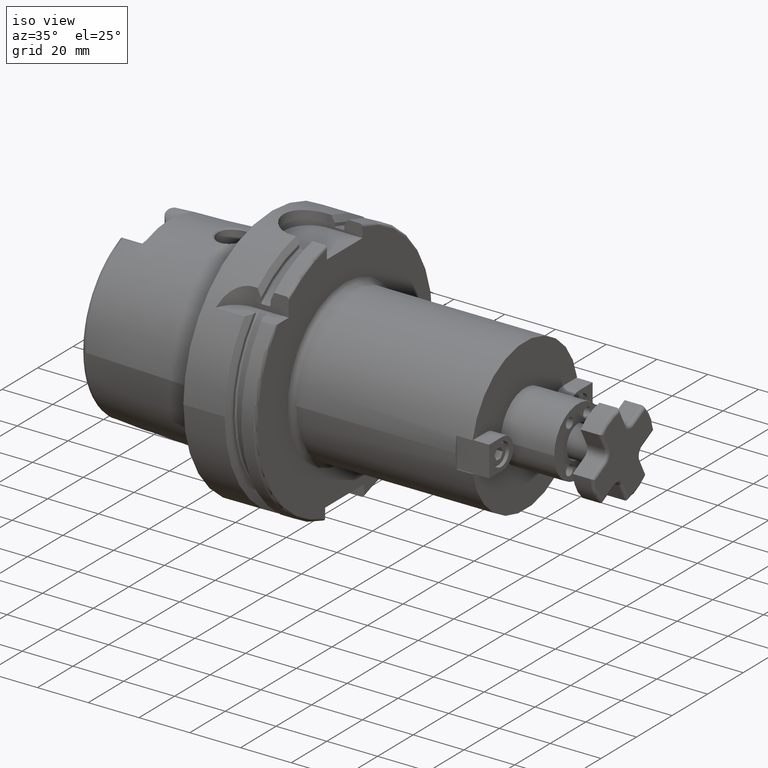
[diagram: clean part render]
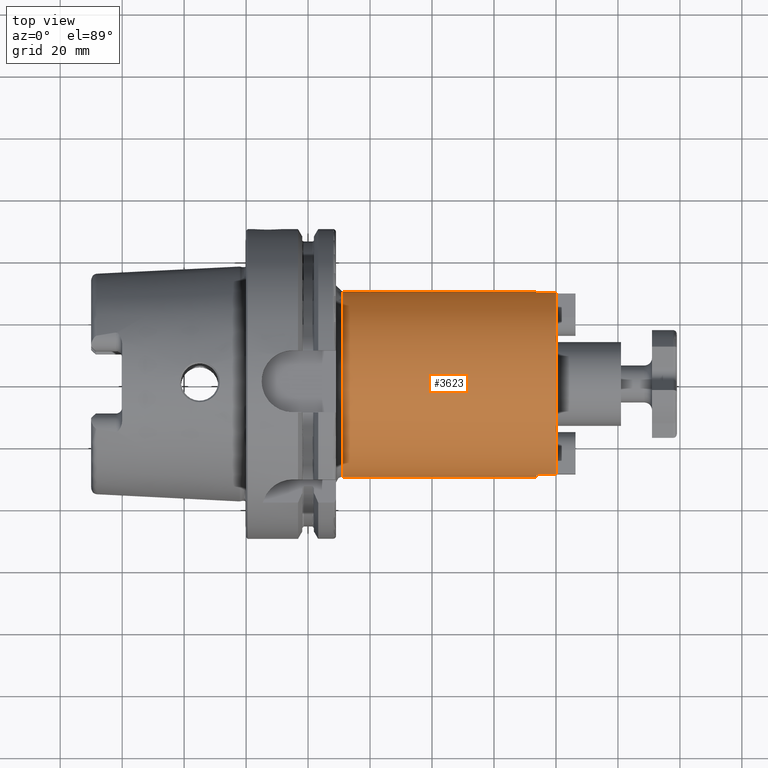
[diagram: tour spotlight — one face highlighted and labeled with its STEP entity id]
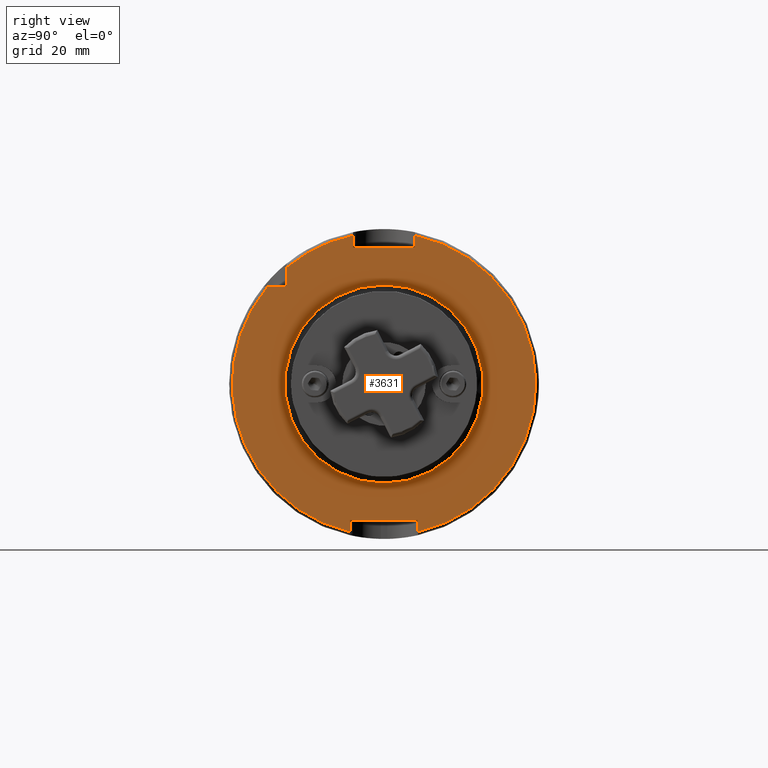
[diagram: tour spotlight — one face highlighted and labeled with its STEP entity id]
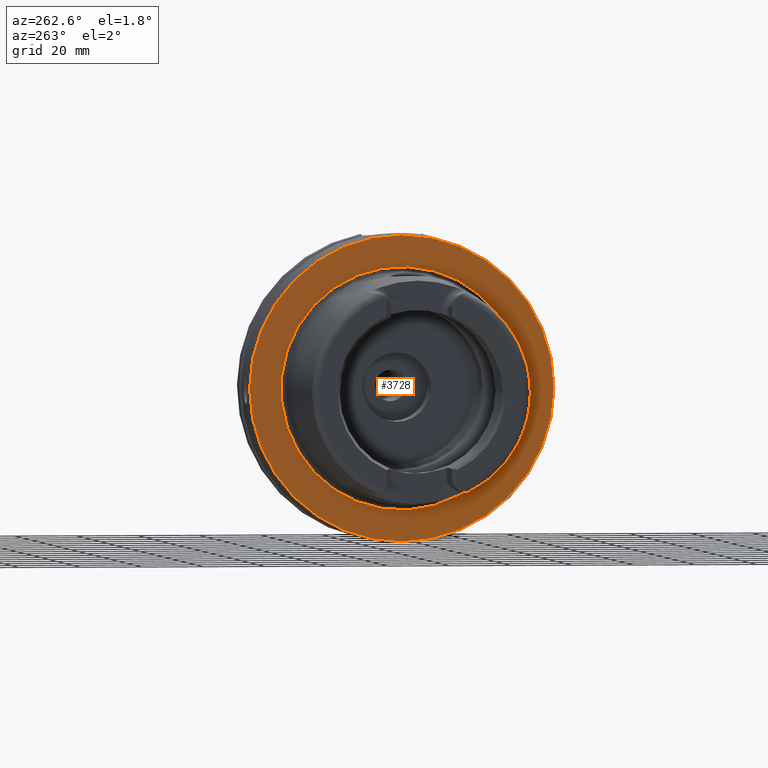
[diagram: tour spotlight — one face highlighted and labeled with its STEP entity id]
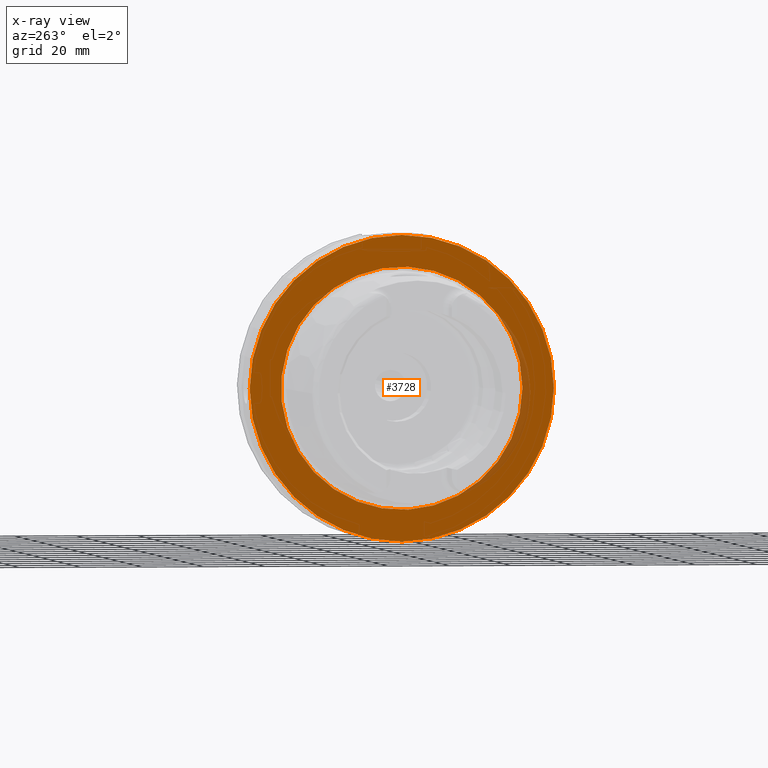
[diagram: x-ray of the same camera — body ghosted, this tour face saturated]
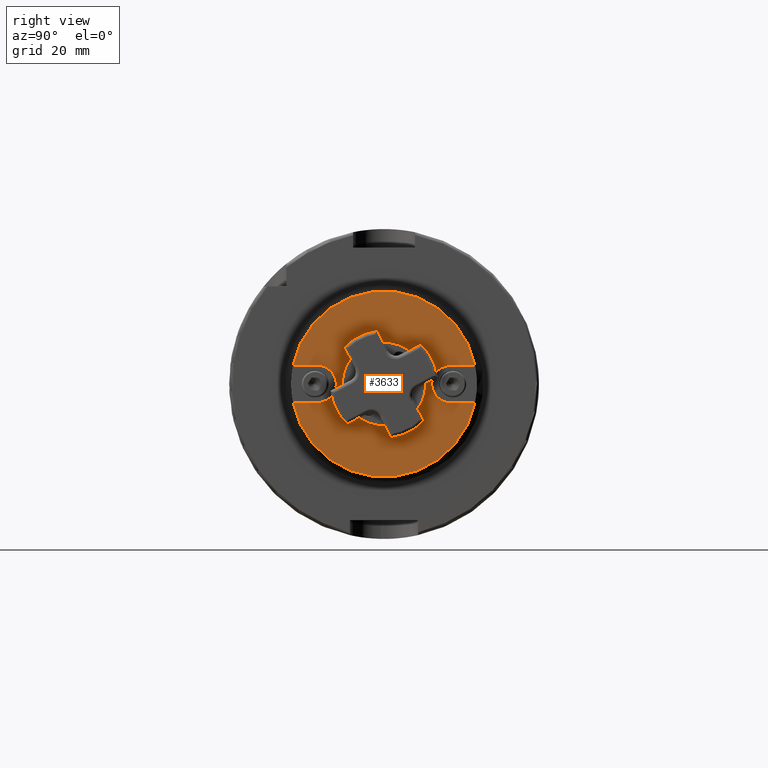
[diagram: tour spotlight — one face highlighted and labeled with its STEP entity id]
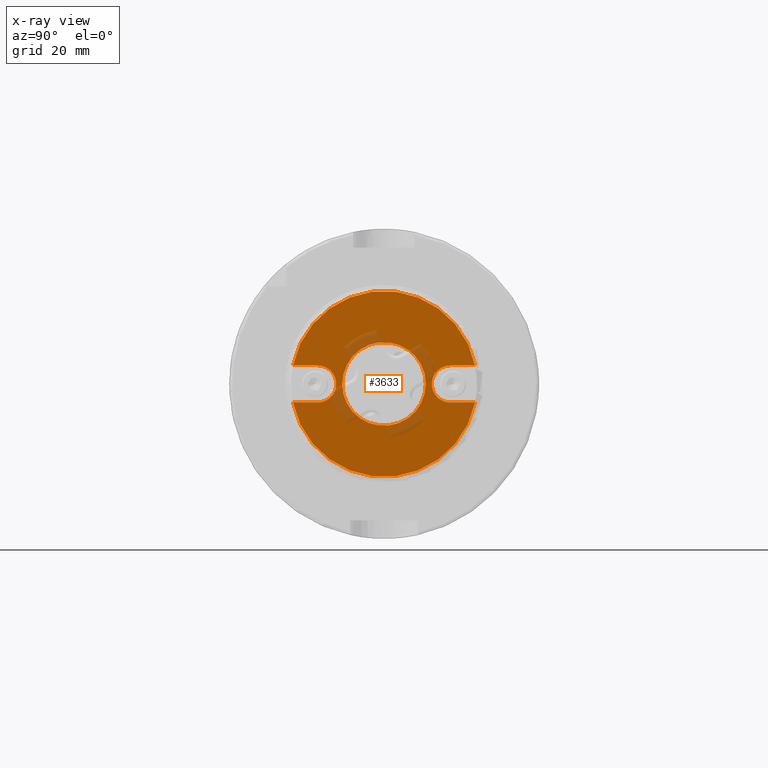
[diagram: x-ray of the same camera — body ghosted, this tour face saturated]
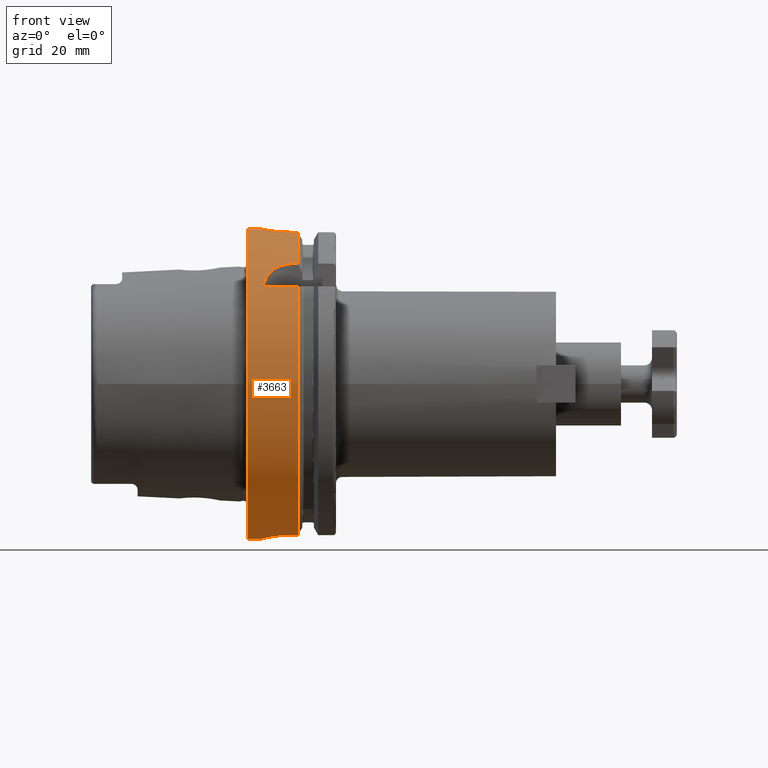
[diagram: tour spotlight — one face highlighted and labeled with its STEP entity id]
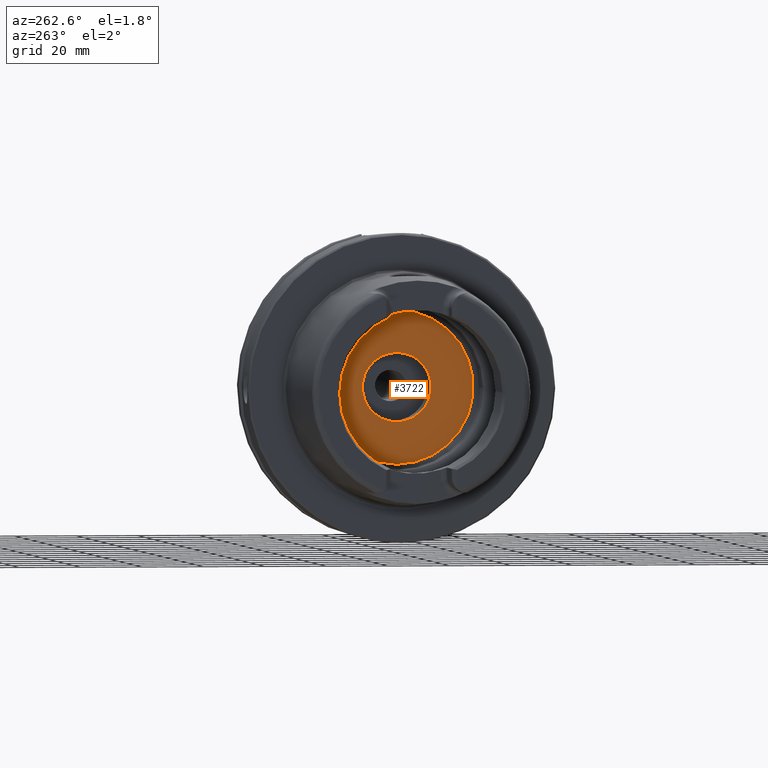
[diagram: tour spotlight — one face highlighted and labeled with its STEP entity id]
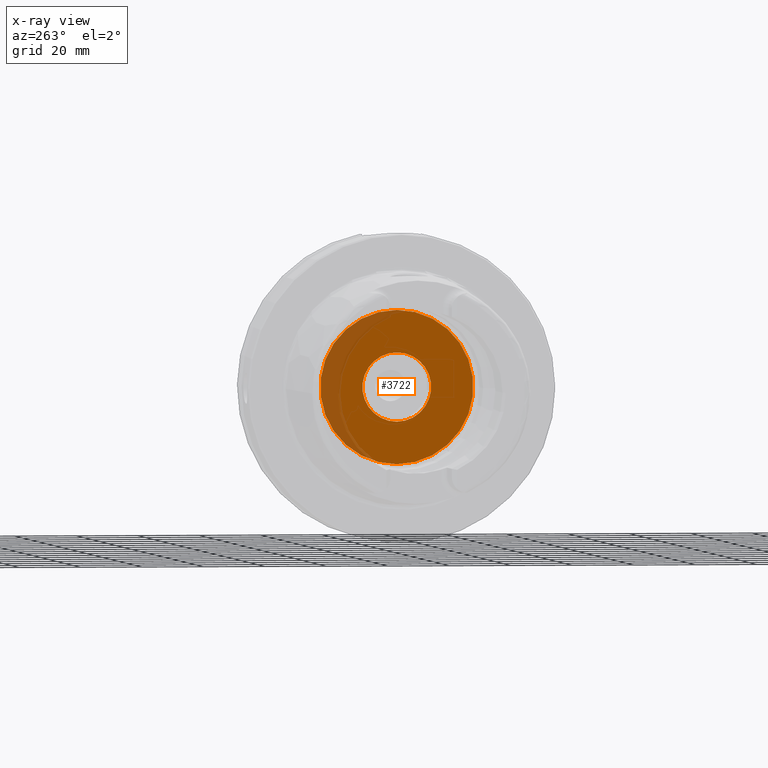
[diagram: x-ray of the same camera — body ghosted, this tour face saturated]
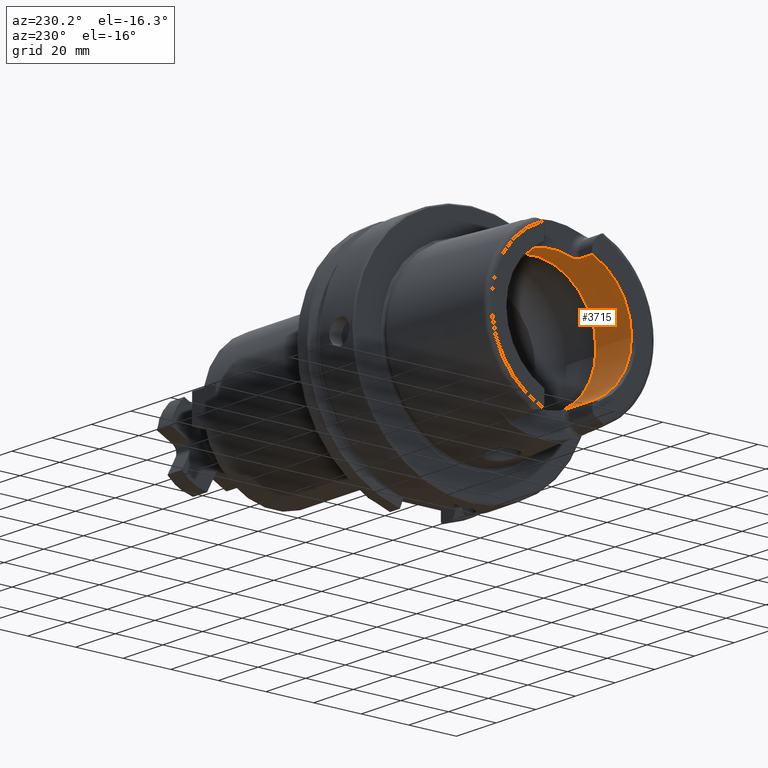
[diagram: tour spotlight — one face highlighted and labeled with its STEP entity id]
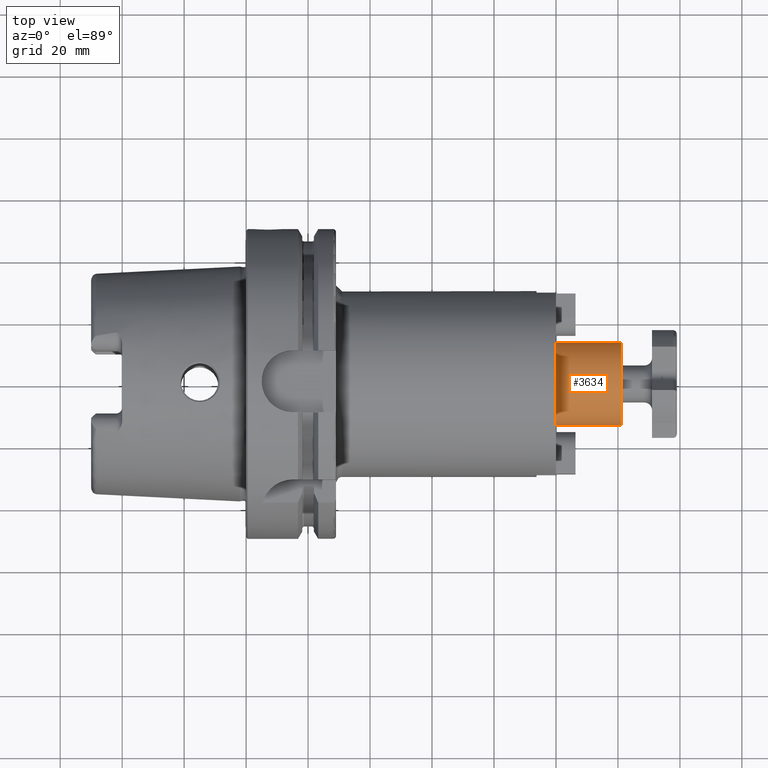
[diagram: tour spotlight — one face highlighted and labeled with its STEP entity id]
A machine part: a face-by-face anatomy tour. The part has 217 B-rep faces; the first image is the clean iso view, then the 8 largest visible faces are spotlighted one at a time (largest first), each with its STEP entity span.

Face 1 — top view, entity #3623. In plain terms, the highlighted cylindrical surface (bore or boss wall) has radius 30 mm, axis along (1, 0, 0).
Definition (entity closure, byte-faithful):
#720=CYLINDRICAL_SURFACE('',#3994,30.);
#792=FACE_OUTER_BOUND('',#986,.T.);
#986=EDGE_LOOP('',(#2666,#2667,#2668,#2669,#2670,#2671,#2672,#2673,#2674,
#2675,#2676,#2677,#2678));
#1195=LINE('',#5640,#1393);
#1203=LINE('',#5669,#1401);
#1205=LINE('',#5673,#1403);
#1206=LINE('',#5680,#1404);
#1207=LINE('',#5684,#1405);
#1393=VECTOR('',#4489,10.);
#1401=VECTOR('',#4519,10.);
#1403=VECTOR('',#4523,30.);
#1404=VECTOR('',#4530,10.);
#1405=VECTOR('',#4533,10.);
#1591=CIRCLE('',#3984,30.);
#1593=CIRCLE('',#3986,30.);
#1597=CIRCLE('',#3995,30.);
#1598=CIRCLE('',#3996,30.);
#1599=CIRCLE('',#3997,30.);
#1600=CIRCLE('',#3998,30.);
#1601=CIRCLE('',#3999,30.);
#1821=VERTEX_POINT('',#5638);
#1822=VERTEX_POINT('',#5639);
#1825=VERTEX_POINT('',#5647);
#1827=VERTEX_POINT('',#5651);
#1832=VERTEX_POINT('',#5668);
#1833=VERTEX_POINT('',#5672);
#1834=VERTEX_POINT('',#5674);
#1835=VERTEX_POINT('',#5677);
#1836=VERTEX_POINT('',#5679);
#1837=VERTEX_POINT('',#5681);
#1838=VERTEX_POINT('',#5683);
#2142=EDGE_CURVE('',#1821,#1822,#1195,.T.);
#2146=EDGE_CURVE('',#1822,#1825,#1591,.T.);
#2149=EDGE_CURVE('',#1825,#1827,#1593,.T.);
#2156=EDGE_CURVE('',#1827,#1832,#1203,.T.);
#2158=EDGE_CURVE('',#1825,#1833,#1205,.T.);
#2159=EDGE_CURVE('',#1834,#1833,#1597,.T.);
#2160=EDGE_CURVE('',#1833,#1834,#1598,.T.);
#2161=EDGE_CURVE('',#1835,#1832,#1599,.T.);
#2162=EDGE_CURVE('',#1835,#1836,#1206,.T.);
#2163=EDGE_CURVE('',#1836,#1837,#1600,.T.);
#2164=EDGE_CURVE('',#1837,#1838,#1207,.T.);
#2165=EDGE_CURVE('',#1821,#1838,#1601,.T.);
#2666=ORIENTED_EDGE('',*,*,#2142,.T.);
#2667=ORIENTED_EDGE('',*,*,#2146,.T.);
#2668=ORIENTED_EDGE('',*,*,#2158,.T.);
#2669=ORIENTED_EDGE('',*,*,#2159,.F.);
#2670=ORIENTED_EDGE('',*,*,#2160,.F.);
#2671=ORIENTED_EDGE('',*,*,#2158,.F.);
#2672=ORIENTED_EDGE('',*,*,#2149,.T.);
#2673=ORIENTED_EDGE('',*,*,#2156,.T.);
#2674=ORIENTED_EDGE('',*,*,#2161,.F.);
#2675=ORIENTED_EDGE('',*,*,#2162,.T.);
#2676=ORIENTED_EDGE('',*,*,#2163,.T.);
#2677=ORIENTED_EDGE('',*,*,#2164,.T.);
#2678=ORIENTED_EDGE('',*,*,#2165,.F.);
#3623=ADVANCED_FACE('',(#792),#720,.T.);
#3984=AXIS2_PLACEMENT_3D('',#5648,#4495,#4496);
#3986=AXIS2_PLACEMENT_3D('',#5653,#4500,#4501);
#3994=AXIS2_PLACEMENT_3D('',#5671,#4521,#4522);
#3995=AXIS2_PLACEMENT_3D('',#5675,#4524,#4525);
#3996=AXIS2_PLACEMENT_3D('',#5676,#4526,#4527);
#3997=AXIS2_PLACEMENT_3D('',#5678,#4528,#4529);
#3998=AXIS2_PLACEMENT_3D('',#5682,#4531,#4532);
#3999=AXIS2_PLACEMENT_3D('',#5685,#4534,#4535);
#4489=DIRECTION('',(-1.,0.,0.));
#4495=DIRECTION('center_axis',(-1.,0.,0.));
#4496=DIRECTION('ref_axis',(0.,1.,0.));
#4500=DIRECTION('center_axis',(-1.,0.,0.));
#4501=DIRECTION('ref_axis',(0.,1.,0.));
#4519=DIRECTION('',(1.,0.,0.));
#4521=DIRECTION('center_axis',(1.,0.,0.));
#4522=DIRECTION('ref_axis',(0.,1.,0.));
#4523=DIRECTION('',(-1.,0.,0.));
#4524=DIRECTION('center_axis',(-1.,0.,0.));
#4525=DIRECTION('ref_axis',(0.,-1.,-1.22464679914735E-16));
#4526=DIRECTION('center_axis',(-1.,0.,0.));
#4527=DIRECTION('ref_axis',(0.,-1.,-1.22464679914735E-16));
#4528=DIRECTION('center_axis',(1.,0.,0.));
#4529=DIRECTION('ref_axis',(0.,0.,-1.));
#4530=DIRECTION('',(-1.,0.,0.));
#4531=DIRECTION('center_axis',(-1.,0.,0.));
#4532=DIRECTION('ref_axis',(0.,1.,0.));
#4533=DIRECTION('',(1.,0.,0.));
#4534=DIRECTION('center_axis',(1.,0.,0.));
#4535=DIRECTION('ref_axis',(0.,0.,-1.));
#5638=CARTESIAN_POINT('',(100.,-29.3938769133981,-6.));
#5639=CARTESIAN_POINT('',(93.7,-29.3938769133981,-6.));
#5640=CARTESIAN_POINT('',(64.5,-29.3938769133981,-6.));
#5647=CARTESIAN_POINT('',(93.7,-30.,-3.67394039744206E-15));
#5648=CARTESIAN_POINT('Origin',(93.7,0.,0.));
#5651=CARTESIAN_POINT('',(93.7,-29.3938769133981,6.));
#5653=CARTESIAN_POINT('Origin',(93.7,0.,0.));
#5668=CARTESIAN_POINT('',(100.,-29.3938769133981,6.));
#5669=CARTESIAN_POINT('',(64.5,-29.3938769133981,6.));
#5671=CARTESIAN_POINT('Origin',(64.5,0.,0.));
#5672=CARTESIAN_POINT('',(31.,-30.,-3.67394039744206E-15));
#5673=CARTESIAN_POINT('',(64.5,-30.,-3.67394039744206E-15));
#5674=CARTESIAN_POINT('',(31.,-3.67394039744206E-15,-30.));
#5675=CARTESIAN_POINT('Origin',(31.,0.,0.));
#5676=CARTESIAN_POINT('Origin',(31.,0.,0.));
#5677=CARTESIAN_POINT('',(100.,29.3938769133981,6.00000000000001));
#5678=CARTESIAN_POINT('Origin',(100.,0.,0.));
#5679=CARTESIAN_POINT('',(93.7,29.3938769133981,6.00000000000001));
#5680=CARTESIAN_POINT('',(64.5,29.3938769133981,6.00000000000001));
#5681=CARTESIAN_POINT('',(93.7,29.3938769133981,-6.));
#5682=CARTESIAN_POINT('Origin',(93.7,0.,0.));
#5683=CARTESIAN_POINT('',(100.,29.3938769133981,-6.));
#5684=CARTESIAN_POINT('',(64.5,29.3938769133981,-6.));
#5685=CARTESIAN_POINT('Origin',(100.,0.,0.));

Face 2 — right view, entity #3631. In plain terms, the highlighted planar face has unit normal (1, 0, 0).
Definition (entity closure, byte-faithful):
#623=FACE_BOUND('',#996,.T.);
#650=PLANE('',#4013);
#800=FACE_OUTER_BOUND('',#995,.T.);
#995=EDGE_LOOP('',(#2708,#2709,#2710,#2711,#2712,#2713,#2714,#2715,#2716,
#2717,#2718));
#996=EDGE_LOOP('',(#2719));
#1216=LINE('',#5718,#1414);
#1217=LINE('',#5722,#1415);
#1218=LINE('',#5724,#1416);
#1219=LINE('',#5726,#1417);
#1220=LINE('',#5730,#1418);
#1221=LINE('',#5732,#1419);
#1222=LINE('',#5734,#1420);
#1223=LINE('',#5737,#1421);
#1414=VECTOR('',#4572,10.);
#1415=VECTOR('',#4575,10.);
#1416=VECTOR('',#4576,10.);
#1417=VECTOR('',#4577,10.);
#1418=VECTOR('',#4580,10.);
#1419=VECTOR('',#4581,10.);
#1420=VECTOR('',#4582,10.);
#1421=VECTOR('',#4585,10.);
#1607=CIRCLE('',#4012,32.);
#1608=CIRCLE('',#4014,49.);
#1609=CIRCLE('',#4015,49.);
#1610=CIRCLE('',#4016,49.);
#1846=VERTEX_POINT('',#5712);
#1847=VERTEX_POINT('',#5716);
#1848=VERTEX_POINT('',#5717);
#1849=VERTEX_POINT('',#5719);
#1850=VERTEX_POINT('',#5721);
#1851=VERTEX_POINT('',#5723);
#1852=VERTEX_POINT('',#5725);
#1853=VERTEX_POINT('',#5727);
#1854=VERTEX_POINT('',#5729);
#1855=VERTEX_POINT('',#5731);
#1856=VERTEX_POINT('',#5733);
#1857=VERTEX_POINT('',#5735);
#2179=EDGE_CURVE('',#1846,#1846,#1607,.T.);
#2180=EDGE_CURVE('',#1847,#1848,#1216,.T.);
#2181=EDGE_CURVE('',#1848,#1849,#1608,.T.);
#2182=EDGE_CURVE('',#1849,#1850,#1217,.T.);
#2183=EDGE_CURVE('',#1850,#1851,#1218,.T.);
#2184=EDGE_CURVE('',#1851,#1852,#1219,.T.);
#2185=EDGE_CURVE('',#1852,#1853,#1609,.T.);
#2186=EDGE_CURVE('',#1853,#1854,#1220,.T.);
#2187=EDGE_CURVE('',#1854,#1855,#1221,.T.);
#2188=EDGE_CURVE('',#1855,#1856,#1222,.T.);
#2189=EDGE_CURVE('',#1856,#1857,#1610,.T.);
#2190=EDGE_CURVE('',#1857,#1847,#1223,.T.);
#2708=ORIENTED_EDGE('',*,*,#2180,.T.);
#2709=ORIENTED_EDGE('',*,*,#2181,.T.);
#2710=ORIENTED_EDGE('',*,*,#2182,.T.);
#2711=ORIENTED_EDGE('',*,*,#2183,.T.);
#2712=ORIENTED_EDGE('',*,*,#2184,.T.);
#2713=ORIENTED_EDGE('',*,*,#2185,.T.);
#2714=ORIENTED_EDGE('',*,*,#2186,.T.);
#2715=ORIENTED_EDGE('',*,*,#2187,.T.);
#2716=ORIENTED_EDGE('',*,*,#2188,.T.);
#2717=ORIENTED_EDGE('',*,*,#2189,.T.);
#2718=ORIENTED_EDGE('',*,*,#2190,.T.);
#2719=ORIENTED_EDGE('',*,*,#2179,.F.);
#3631=ADVANCED_FACE('',(#800,#623),#650,.T.);
#4012=AXIS2_PLACEMENT_3D('',#5714,#4568,#4569);
#4013=AXIS2_PLACEMENT_3D('',#5715,#4570,#4571);
#4014=AXIS2_PLACEMENT_3D('',#5720,#4573,#4574);
#4015=AXIS2_PLACEMENT_3D('',#5728,#4578,#4579);
#4016=AXIS2_PLACEMENT_3D('',#5736,#4583,#4584);
#4568=DIRECTION('center_axis',(1.,0.,0.));
#4569=DIRECTION('ref_axis',(0.,-1.,-1.22464679914735E-16));
#4570=DIRECTION('center_axis',(1.,0.,0.));
#4571=DIRECTION('ref_axis',(0.,0.,-1.));
#4572=DIRECTION('',(0.,-1.,0.));
#4573=DIRECTION('center_axis',(1.,0.,0.));
#4574=DIRECTION('ref_axis',(0.,0.,-1.));
#4575=DIRECTION('',(0.,0.,1.));
#4576=DIRECTION('',(0.,1.,0.));
#4577=DIRECTION('',(0.,0.,-1.));
#4578=DIRECTION('center_axis',(1.,0.,0.));
#4579=DIRECTION('ref_axis',(0.,0.,-1.));
#4580=DIRECTION('',(0.,0.,-1.));
#4581=DIRECTION('',(0.,-1.,0.));
#4582=DIRECTION('',(0.,0.,1.));
#4583=DIRECTION('center_axis',(1.,0.,0.));
#4584=DIRECTION('ref_axis',(0.,0.,-1.));
#4585=DIRECTION('',(0.,0.,-1.));
#5712=CARTESIAN_POINT('',(29.,-3.91886975727153E-15,-32.));
#5714=CARTESIAN_POINT('Origin',(29.,0.,0.));
#5715=CARTESIAN_POINT('Origin',(29.,0.,0.));
#5716=CARTESIAN_POINT('',(29.,-31.5,31.5));
#5717=CARTESIAN_POINT('',(29.,-37.5333185316726,31.5));
#5718=CARTESIAN_POINT('',(29.,-18.25,31.5));
#5719=CARTESIAN_POINT('',(29.,-11.,-47.7493455452533));
#5720=CARTESIAN_POINT('Origin',(29.,0.,0.));
#5721=CARTESIAN_POINT('',(29.,-11.,-44.));
#5722=CARTESIAN_POINT('',(29.,-11.,-22.));
#5723=CARTESIAN_POINT('',(29.,11.,-44.));
#5724=CARTESIAN_POINT('',(29.,-5.55111512312578E-16,-44.));
#5725=CARTESIAN_POINT('',(29.,11.,-47.7493455452533));
#5726=CARTESIAN_POINT('',(29.,11.,-22.));
#5727=CARTESIAN_POINT('',(29.,10.,47.9687398208458));
#5728=CARTESIAN_POINT('Origin',(29.,0.,0.));
#5729=CARTESIAN_POINT('',(29.,10.,44.));
#5730=CARTESIAN_POINT('',(29.,10.,22.));
#5731=CARTESIAN_POINT('',(29.,-10.,44.));
#5732=CARTESIAN_POINT('',(29.,0.,44.));
#5733=CARTESIAN_POINT('',(29.,-10.,47.9687398208458));
#5734=CARTESIAN_POINT('',(29.,-10.,22.));
#5735=CARTESIAN_POINT('',(29.,-31.5,37.5333185316726));
#5736=CARTESIAN_POINT('Origin',(29.,0.,0.));
#5737=CARTESIAN_POINT('',(29.,-31.5,15.75));

Face 3 — auxiliary view, entity #3728. An x-ray twin of the same camera follows (body ghosted, this face saturated) — the face is partly hidden behind the body. In plain terms, the highlighted planar face has unit normal (-1, 0, 0).
Definition (entity closure, byte-faithful):
#637=FACE_BOUND('',#1107,.T.);
#685=PLANE('',#4221);
#897=FACE_OUTER_BOUND('',#1106,.T.);
#1106=EDGE_LOOP('',(#3253));
#1107=EDGE_LOOP('',(#3254));
#1712=CIRCLE('',#4220,39.2747800249997);
#1713=CIRCLE('',#4222,49.5);
#2031=VERTEX_POINT('',#7149);
#2032=VERTEX_POINT('',#7153);
#2456=EDGE_CURVE('',#2031,#2031,#1712,.T.);
#2457=EDGE_CURVE('',#2032,#2032,#1713,.T.);
#3253=ORIENTED_EDGE('',*,*,#2457,.F.);
#3254=ORIENTED_EDGE('',*,*,#2456,.T.);
#3728=ADVANCED_FACE('',(#897,#637),#685,.T.);
#4220=AXIS2_PLACEMENT_3D('',#7151,#5080,#5081);
#4221=AXIS2_PLACEMENT_3D('',#7152,#5082,#5083);
#4222=AXIS2_PLACEMENT_3D('',#7154,#5084,#5085);
#5080=DIRECTION('center_axis',(1.,0.,0.));
#5081=DIRECTION('ref_axis',(0.,0.,-1.));
#5082=DIRECTION('center_axis',(-1.,0.,0.));
#5083=DIRECTION('ref_axis',(0.,0.,1.));
#5084=DIRECTION('center_axis',(1.,0.,0.));
#5085=DIRECTION('ref_axis',(0.,0.,-1.));
#7149=CARTESIAN_POINT('',(-1.04950770296597E-15,-39.2747800249997,-4.80977336448322E-15));
#7151=CARTESIAN_POINT('Origin',(0.,0.,0.));
#7152=CARTESIAN_POINT('Origin',(0.,49.5,0.));
#7153=CARTESIAN_POINT('',(1.28369537222284E-15,-49.5,-6.0620016557794E-15));
#7154=CARTESIAN_POINT('Origin',(0.,0.,0.));

Face 4 — right view, entity #3633. An x-ray twin of the same camera follows (body ghosted, this face saturated) — the face is partly hidden behind the body. In plain terms, the highlighted planar face has unit normal (1, 0, 0).
Definition (entity closure, byte-faithful):
#624=FACE_BOUND('',#999,.T.);
#651=PLANE('',#4020);
#802=FACE_OUTER_BOUND('',#998,.T.);
#998=EDGE_LOOP('',(#2724,#2725,#2726,#2727,#2728,#2729,#2730,#2731));
#999=EDGE_LOOP('',(#2732));
#1196=LINE('',#5642,#1394);
#1204=LINE('',#5670,#1402);
#1210=LINE('',#5697,#1408);
#1215=LINE('',#5710,#1413);
#1394=VECTOR('',#4490,10.);
#1402=VECTOR('',#4520,10.);
#1408=VECTOR('',#4548,10.);
#1413=VECTOR('',#4563,10.);
#1596=CIRCLE('',#3992,5.99999999999999);
#1599=CIRCLE('',#3997,30.);
#1601=CIRCLE('',#3999,30.);
#1605=CIRCLE('',#4008,5.99999999999999);
#1613=CIRCLE('',#4021,13.5);
#1821=VERTEX_POINT('',#5638);
#1823=VERTEX_POINT('',#5641);
#1831=VERTEX_POINT('',#5664);
#1832=VERTEX_POINT('',#5668);
#1835=VERTEX_POINT('',#5677);
#1838=VERTEX_POINT('',#5683);
#1842=VERTEX_POINT('',#5696);
#1845=VERTEX_POINT('',#5706);
#1860=VERTEX_POINT('',#5745);
#2143=EDGE_CURVE('',#1823,#1821,#1196,.T.);
#2154=EDGE_CURVE('',#1831,#1823,#1596,.T.);
#2157=EDGE_CURVE('',#1832,#1831,#1204,.T.);
#2161=EDGE_CURVE('',#1835,#1832,#1599,.T.);
#2165=EDGE_CURVE('',#1821,#1838,#1601,.T.);
#2170=EDGE_CURVE('',#1842,#1835,#1210,.T.);
#2175=EDGE_CURVE('',#1845,#1842,#1605,.T.);
#2177=EDGE_CURVE('',#1838,#1845,#1215,.T.);
#2194=EDGE_CURVE('',#1860,#1860,#1613,.T.);
#2724=ORIENTED_EDGE('',*,*,#2143,.T.);
#2725=ORIENTED_EDGE('',*,*,#2165,.T.);
#2726=ORIENTED_EDGE('',*,*,#2177,.T.);
#2727=ORIENTED_EDGE('',*,*,#2175,.T.);
#2728=ORIENTED_EDGE('',*,*,#2170,.T.);
#2729=ORIENTED_EDGE('',*,*,#2161,.T.);
#2730=ORIENTED_EDGE('',*,*,#2157,.T.);
#2731=ORIENTED_EDGE('',*,*,#2154,.T.);
#2732=ORIENTED_EDGE('',*,*,#2194,.F.);
#3633=ADVANCED_FACE('',(#802,#624),#651,.T.);
#3992=AXIS2_PLACEMENT_3D('',#5665,#4514,#4515);
#3997=AXIS2_PLACEMENT_3D('',#5678,#4528,#4529);
#3999=AXIS2_PLACEMENT_3D('',#5685,#4534,#4535);
#4008=AXIS2_PLACEMENT_3D('',#5707,#4558,#4559);
#4020=AXIS2_PLACEMENT_3D('',#5744,#4593,#4594);
#4021=AXIS2_PLACEMENT_3D('',#5746,#4595,#4596);
#4490=DIRECTION('',(0.,-1.,-2.85705549726866E-16));
#4514=DIRECTION('center_axis',(-1.,0.,0.));
#4515=DIRECTION('ref_axis',(0.,6.17684003168704E-16,-1.));
#4520=DIRECTION('',(0.,1.,-4.08306339864151E-17));
#4528=DIRECTION('center_axis',(1.,0.,0.));
#4529=DIRECTION('ref_axis',(0.,0.,-1.));
#4534=DIRECTION('center_axis',(1.,0.,0.));
#4535=DIRECTION('ref_axis',(0.,0.,-1.));
#4548=DIRECTION('',(0.,1.,4.08170229641601E-16));
#4558=DIRECTION('center_axis',(-1.,0.,0.));
#4559=DIRECTION('ref_axis',(0.,-7.40148683083439E-16,1.));
#4563=DIRECTION('',(0.,-1.,-8.16340459283202E-17));
#4593=DIRECTION('center_axis',(1.,0.,0.));
#4594=DIRECTION('ref_axis',(0.,0.,-1.));
#4595=DIRECTION('center_axis',(1.,0.,0.));
#4596=DIRECTION('ref_axis',(0.,0.,-1.));
#5638=CARTESIAN_POINT('',(100.,-29.3938769133981,-6.));
#5641=CARTESIAN_POINT('',(100.,-21.4,-6.));
#5642=CARTESIAN_POINT('',(100.,-3.94999999999999,-5.99999999999999));
#5664=CARTESIAN_POINT('',(100.,-21.4,6.));
#5665=CARTESIAN_POINT('Origin',(100.,-21.4,-1.0992752473939E-14));
#5668=CARTESIAN_POINT('',(100.,-29.3938769133981,6.));
#5670=CARTESIAN_POINT('',(100.,-10.75,6.));
#5677=CARTESIAN_POINT('',(100.,29.3938769133981,6.00000000000001));
#5678=CARTESIAN_POINT('Origin',(100.,0.,0.));
#5683=CARTESIAN_POINT('',(100.,29.3938769133981,-6.));
#5685=CARTESIAN_POINT('Origin',(100.,0.,0.));
#5696=CARTESIAN_POINT('',(100.,21.4,6.));
#5697=CARTESIAN_POINT('',(100.,17.45,6.));
#5706=CARTESIAN_POINT('',(100.,21.4,-6.));
#5707=CARTESIAN_POINT('Origin',(100.,21.4,1.36134966241143E-14));
#5710=CARTESIAN_POINT('',(100.,24.25,-6.));
#5744=CARTESIAN_POINT('Origin',(100.,13.5,0.));
#5745=CARTESIAN_POINT('',(100.,-13.5,-1.65327317884893E-15));
#5746=CARTESIAN_POINT('Origin',(100.,0.,0.));

Face 5 — front view, entity #3663. In plain terms, the highlighted cylindrical surface (bore or boss wall) has radius 50 mm, axis along (1, 0, 0).
Definition (entity closure, byte-faithful):
#541=B_SPLINE_CURVE_WITH_KNOTS('',3,(#6505,#6506,#6507,#6508,#6509,#6510,
#6511,#6512,#6513,#6514,#6515,#6516,#6517,#6518,#6519,#6520,#6521,#6522,
#6523,#6524,#6525,#6526,#6527,#6528,#6529,#6530),.UNSPECIFIED.,.F.,.F.,
(4,2,2,2,2,2,2,2,2,2,2,2,4),(0.,0.188478911015149,0.376957822030298,0.565436091508923,
0.753914360987547,0.942392630466172,1.1308708999448,1.31934981095995,1.50782872197509,
1.69630763299024,1.88478654400539,2.07326481348402,2.26174308296264),
 .UNSPECIFIED.);
#542=B_SPLINE_CURVE_WITH_KNOTS('',3,(#6531,#6532,#6533,#6534,#6535,#6536,
#6537,#6538,#6539,#6540),.UNSPECIFIED.,.F.,.F.,(4,2,2,2,4),(2.26174308296264,
2.45022135244127,2.63869962191989,2.82717853293504,3.01565744395019),
 .UNSPECIFIED.);
#543=B_SPLINE_CURVE_WITH_KNOTS('',3,(#6544,#6545,#6546,#6547,#6548,#6549,
#6550,#6551,#6552,#6553,#6554,#6555),.UNSPECIFIED.,.F.,.F.,(4,2,2,2,2,4),
(1.13213255574021,1.59216410027009,1.87572541272146,2.15928672517283,2.38471683342296,
2.61014694167308),.UNSPECIFIED.);
#550=B_SPLINE_CURVE_WITH_KNOTS('',3,(#6668,#6669,#6670,#6671,#6672,#6673,
#6674,#6675,#6676,#6677,#6678,#6679,#6680,#6681,#6682,#6683,#6684,#6685),
 .UNSPECIFIED.,.F.,.F.,(4,2,2,2,2,2,2,2,4),(0.,0.377795255890194,0.755590511780389,
1.13336459804459,1.51113868430879,1.88891277057299,2.26668685683718,2.64448211272738,
3.02227736861757),.UNSPECIFIED.);
#551=B_SPLINE_CURVE_WITH_KNOTS('',3,(#6693,#6694,#6695,#6696,#6697,#6698,
#6699,#6700,#6701,#6702),.UNSPECIFIED.,.F.,.F.,(4,2,2,2,4),(0.,0.377863193874929,
0.755726387749858,1.13417752669663,1.51262866564341),.UNSPECIFIED.);
#552=B_SPLINE_CURVE_WITH_KNOTS('',3,(#6706,#6707,#6708,#6709,#6710,#6711,
#6712,#6713,#6714,#6715),.UNSPECIFIED.,.F.,.F.,(4,2,2,2,4),(1.50996806152532,
1.8884192004721,2.26687033941887,2.6447335332938,3.02259672716873),
 .UNSPECIFIED.);
#633=FACE_BOUND('',#1038,.T.);
#734=CYLINDRICAL_SURFACE('',#4091,50.);
#832=FACE_OUTER_BOUND('',#1037,.T.);
#1037=EDGE_LOOP('',(#2915,#2916,#2917,#2918,#2919,#2920,#2921,#2922,#2923,
#2924,#2925,#2926,#2927,#2928,#2929,#2930,#2931,#2932));
#1038=EDGE_LOOP('',(#2933,#2934));
#1253=LINE('',#6561,#1451);
#1259=LINE('',#6613,#1457);
#1264=LINE('',#6666,#1462);
#1265=LINE('',#6687,#1463);
#1266=LINE('',#6691,#1464);
#1267=LINE('',#6717,#1465);
#1268=LINE('',#6721,#1466);
#1451=VECTOR('',#4761,10.);
#1457=VECTOR('',#4769,10.);
#1462=VECTOR('',#4778,10.);
#1463=VECTOR('',#4779,10.);
#1464=VECTOR('',#4782,10.);
#1465=VECTOR('',#4785,10.);
#1466=VECTOR('',#4788,50.);
#1648=CIRCLE('',#4092,50.);
#1649=CIRCLE('',#4093,50.);
#1650=CIRCLE('',#4094,50.);
#1651=CIRCLE('',#4095,50.);
#1652=CIRCLE('',#4096,50.);
#1653=CIRCLE('',#4097,50.);
#1931=VERTEX_POINT('',#6502);
#1932=VERTEX_POINT('',#6504);
#1933=VERTEX_POINT('',#6542);
#1934=VERTEX_POINT('',#6543);
#1936=VERTEX_POINT('',#6560);
#1945=VERTEX_POINT('',#6612);
#1954=VERTEX_POINT('',#6663);
#1955=VERTEX_POINT('',#6665);
#1956=VERTEX_POINT('',#6667);
#1957=VERTEX_POINT('',#6686);
#1958=VERTEX_POINT('',#6688);
#1959=VERTEX_POINT('',#6690);
#1960=VERTEX_POINT('',#6692);
#1961=VERTEX_POINT('',#6703);
#1962=VERTEX_POINT('',#6705);
#1963=VERTEX_POINT('',#6716);
#1964=VERTEX_POINT('',#6718);
#1965=VERTEX_POINT('',#6720);
#2290=EDGE_CURVE('',#1932,#1931,#541,.T.);
#2291=EDGE_CURVE('',#1931,#1932,#542,.T.);
#2292=EDGE_CURVE('',#1933,#1934,#543,.T.);
#2295=EDGE_CURVE('',#1934,#1936,#1253,.T.);
#2306=EDGE_CURVE('',#1945,#1933,#1259,.T.);
#2316=EDGE_CURVE('',#1954,#1936,#1648,.T.);
#2317=EDGE_CURVE('',#1954,#1955,#1264,.T.);
#2318=EDGE_CURVE('',#1955,#1956,#550,.T.);
#2319=EDGE_CURVE('',#1956,#1957,#1265,.T.);
#2320=EDGE_CURVE('',#1958,#1957,#1649,.T.);
#2321=EDGE_CURVE('',#1958,#1959,#1266,.T.);
#2322=EDGE_CURVE('',#1959,#1960,#551,.T.);
#2323=EDGE_CURVE('',#1960,#1961,#1650,.T.);
#2324=EDGE_CURVE('',#1961,#1962,#552,.T.);
#2325=EDGE_CURVE('',#1962,#1963,#1267,.T.);
#2326=EDGE_CURVE('',#1964,#1963,#1651,.T.);
#2327=EDGE_CURVE('',#1964,#1965,#1268,.T.);
#2328=EDGE_CURVE('',#1965,#1965,#1652,.T.);
#2329=EDGE_CURVE('',#1945,#1964,#1653,.T.);
#2915=ORIENTED_EDGE('',*,*,#2306,.T.);
#2916=ORIENTED_EDGE('',*,*,#2292,.T.);
#2917=ORIENTED_EDGE('',*,*,#2295,.T.);
#2918=ORIENTED_EDGE('',*,*,#2316,.F.);
#2919=ORIENTED_EDGE('',*,*,#2317,.T.);
#2920=ORIENTED_EDGE('',*,*,#2318,.T.);
#2921=ORIENTED_EDGE('',*,*,#2319,.T.);
#2922=ORIENTED_EDGE('',*,*,#2320,.F.);
#2923=ORIENTED_EDGE('',*,*,#2321,.T.);
#2924=ORIENTED_EDGE('',*,*,#2322,.T.);
#2925=ORIENTED_EDGE('',*,*,#2323,.T.);
#2926=ORIENTED_EDGE('',*,*,#2324,.T.);
#2927=ORIENTED_EDGE('',*,*,#2325,.T.);
#2928=ORIENTED_EDGE('',*,*,#2326,.F.);
#2929=ORIENTED_EDGE('',*,*,#2327,.T.);
#2930=ORIENTED_EDGE('',*,*,#2328,.T.);
#2931=ORIENTED_EDGE('',*,*,#2327,.F.);
#2932=ORIENTED_EDGE('',*,*,#2329,.F.);
#2933=ORIENTED_EDGE('',*,*,#2290,.T.);
#2934=ORIENTED_EDGE('',*,*,#2291,.T.);
#3663=ADVANCED_FACE('',(#832,#633),#734,.T.);
#4091=AXIS2_PLACEMENT_3D('',#6662,#4774,#4775);
#4092=AXIS2_PLACEMENT_3D('',#6664,#4776,#4777);
#4093=AXIS2_PLACEMENT_3D('',#6689,#4780,#4781);
#4094=AXIS2_PLACEMENT_3D('',#6704,#4783,#4784);
#4095=AXIS2_PLACEMENT_3D('',#6719,#4786,#4787);
#4096=AXIS2_PLACEMENT_3D('',#6722,#4789,#4790);
#4097=AXIS2_PLACEMENT_3D('',#6723,#4791,#4792);
#4761=DIRECTION('',(1.,0.,0.));
#4769=DIRECTION('',(-1.,0.,0.));
#4774=DIRECTION('center_axis',(1.,0.,0.));
#4775=DIRECTION('ref_axis',(0.,1.,0.));
#4776=DIRECTION('center_axis',(1.,0.,0.));
#4777=DIRECTION('ref_axis',(0.,0.,-1.));
#4778=DIRECTION('',(-1.,0.,0.));
#4779=DIRECTION('',(1.,0.,0.));
#4780=DIRECTION('center_axis',(1.,0.,0.));
#4781=DIRECTION('ref_axis',(0.,0.,-1.));
#4782=DIRECTION('',(-1.,0.,0.));
#4783=DIRECTION('center_axis',(-1.,0.,0.));
#4784=DIRECTION('ref_axis',(0.,1.,0.));
#4785=DIRECTION('',(1.,0.,0.));
#4786=DIRECTION('center_axis',(1.,0.,0.));
#4787=DIRECTION('ref_axis',(0.,0.,-1.));
#4788=DIRECTION('',(-1.,0.,0.));
#4789=DIRECTION('center_axis',(1.,0.,0.));
#4790=DIRECTION('ref_axis',(0.,0.,-1.));
#4791=DIRECTION('center_axis',(1.,0.,0.));
#4792=DIRECTION('ref_axis',(0.,0.,-1.));
#6502=CARTESIAN_POINT('',(12.,50.,-6.12323399573677E-16));
#6504=CARTESIAN_POINT('',(6.99999999999999,49.749371855331,5.));
#6505=CARTESIAN_POINT('Ctrl Pts',(6.99999999999999,49.749371855331,5.));
#6506=CARTESIAN_POINT('Ctrl Pts',(6.37173696328283,49.749371855331,5.));
#6507=CARTESIAN_POINT('Ctrl Pts',(5.70188570880885,49.7624993987098,4.87435544587055));
#6508=CARTESIAN_POINT('Ctrl Pts',(4.4701142477173,49.8098541153698,4.36395693611591));
#6509=CARTESIAN_POINT('Ctrl Pts',(3.90815809537484,49.8433908660961,3.97922590724033));
#6510=CARTESIAN_POINT('Ctrl Pts',(3.02077560297968,49.9062957431473,3.09184341484517));
#6511=CARTESIAN_POINT('Ctrl Pts',(2.63604339567929,49.9397591808605,2.52988660036719));
#6512=CARTESIAN_POINT('Ctrl Pts',(2.12564400622109,49.9869460568296,1.29811292154946));
#6513=CARTESIAN_POINT('Ctrl Pts',(1.99999999999999,50.,0.628260898262081));
#6514=CARTESIAN_POINT('Ctrl Pts',(1.99999999999999,50.,-0.628260898262082));
#6515=CARTESIAN_POINT('Ctrl Pts',(2.12564400622109,49.9869460568296,-1.29811292154946));
#6516=CARTESIAN_POINT('Ctrl Pts',(2.63604339567929,49.9397591808605,-2.52988660036719));
#6517=CARTESIAN_POINT('Ctrl Pts',(3.02077560297968,49.9062957431473,-3.09184341484517));
#6518=CARTESIAN_POINT('Ctrl Pts',(3.90815809537484,49.8433908660961,-3.97922590724033));
#6519=CARTESIAN_POINT('Ctrl Pts',(4.4701142477173,49.8098541153698,-4.36395693611591));
#6520=CARTESIAN_POINT('Ctrl Pts',(5.70188570880885,49.7624993987098,-4.87435544587055));
#6521=CARTESIAN_POINT('Ctrl Pts',(6.37173696328283,49.749371855331,-5.));
#6522=CARTESIAN_POINT('Ctrl Pts',(7.62826303671716,49.749371855331,-5.));
#6523=CARTESIAN_POINT('Ctrl Pts',(8.29811429119113,49.7624993987098,-4.87435544587055));
#6524=CARTESIAN_POINT('Ctrl Pts',(9.52988575228269,49.8098541153698,-4.36395693611591));
#6525=CARTESIAN_POINT('Ctrl Pts',(10.0918419046251,49.8433908660961,-3.97922590724033));
#6526=CARTESIAN_POINT('Ctrl Pts',(10.9792243970203,49.9062957431473,-3.09184341484517));
#6527=CARTESIAN_POINT('Ctrl Pts',(11.3639566043207,49.9397591808605,-2.52988660036719));
#6528=CARTESIAN_POINT('Ctrl Pts',(11.8743559937789,49.9869460568296,-1.29811292154947));
#6529=CARTESIAN_POINT('Ctrl Pts',(12.,50.,-0.628260898262083));
#6530=CARTESIAN_POINT('Ctrl Pts',(12.,50.,-5.55111512312578E-16));
#6531=CARTESIAN_POINT('Ctrl Pts',(12.,50.,-5.55111512312578E-16));
#6532=CARTESIAN_POINT('Ctrl Pts',(12.,50.,0.628260898262082));
#6533=CARTESIAN_POINT('Ctrl Pts',(11.8743559937789,49.9869460568296,1.29811292154946));
#6534=CARTESIAN_POINT('Ctrl Pts',(11.3639566043207,49.9397591808605,2.52988660036719));
#6535=CARTESIAN_POINT('Ctrl Pts',(10.9792243970203,49.9062957431473,3.09184341484517));
#6536=CARTESIAN_POINT('Ctrl Pts',(10.0918419046251,49.8433908660961,3.97922590724033));
#6537=CARTESIAN_POINT('Ctrl Pts',(9.52988575228269,49.8098541153698,4.36395693611591));
#6538=CARTESIAN_POINT('Ctrl Pts',(8.29811429119113,49.7624993987098,4.87435544587055));
#6539=CARTESIAN_POINT('Ctrl Pts',(7.62826303671716,49.749371855331,5.));
#6540=CARTESIAN_POINT('Ctrl Pts',(6.99999999999999,49.749371855331,5.));
#6542=CARTESIAN_POINT('',(5.36310214079494,-38.8297566307078,31.5));
#6543=CARTESIAN_POINT('',(15.,-31.5,38.8297566307078));
#6544=CARTESIAN_POINT('Ctrl Pts',(5.36310214079494,-38.8297566307078,31.5));
#6545=CARTESIAN_POINT('Ctrl Pts',(5.63795050776221,-37.8378299510303,32.722738779917));
#6546=CARTESIAN_POINT('Ctrl Pts',(6.08245260240086,-36.8264130955983,33.8486741193789));
#6547=CARTESIAN_POINT('Ctrl Pts',(7.14730321206235,-35.2667182945212,35.4540138707062));
#6548=CARTESIAN_POINT('Ctrl Pts',(7.68113760815893,-34.6306580359392,36.0741351437033));
#6549=CARTESIAN_POINT('Ctrl Pts',(8.97436758466638,-33.4722127660808,37.1515365058173));
#6550=CARTESIAN_POINT('Ctrl Pts',(9.73574998094174,-32.9521170857844,37.6088911783762));
#6551=CARTESIAN_POINT('Ctrl Pts',(11.1521999725134,-32.2432973482077,38.2170233500259));
#6552=CARTESIAN_POINT('Ctrl Pts',(11.8888981504148,-31.9629772872452,38.4503075998006));
#6553=CARTESIAN_POINT('Ctrl Pts',(13.4369856471743,-31.5908755949743,38.7566077888176));
#6554=CARTESIAN_POINT('Ctrl Pts',(14.2485663058329,-31.5,38.8297566307078));
#6555=CARTESIAN_POINT('Ctrl Pts',(15.,-31.5,38.8297566307078));
#6560=CARTESIAN_POINT('',(16.7379709790786,-31.5,38.8297566307078));
#6561=CARTESIAN_POINT('',(8.61898548953931,-31.5,38.8297566307078));
#6612=CARTESIAN_POINT('',(16.7379709790786,-38.8297566307078,31.5));
#6613=CARTESIAN_POINT('',(8.61898548953931,-38.8297566307078,31.5));
#6662=CARTESIAN_POINT('Origin',(8.61898548953931,0.,0.));
#6663=CARTESIAN_POINT('',(16.7379709790786,-10.,48.9897948556636));
#6664=CARTESIAN_POINT('Origin',(16.7379709790786,0.,0.));
#6665=CARTESIAN_POINT('',(15.,-10.,48.9897948556636));
#6666=CARTESIAN_POINT('',(8.61898548953931,-10.,48.9897948556636));
#6667=CARTESIAN_POINT('',(15.,10.,48.9897948556636));
#6668=CARTESIAN_POINT('Ctrl Pts',(15.,-10.,48.9897948556636));
#6669=CARTESIAN_POINT('Ctrl Pts',(13.740682480366,-10.,48.9897948556636));
#6670=CARTESIAN_POINT('Ctrl Pts',(12.3998222283811,-9.74762796248614,49.0433876618447));
#6671=CARTESIAN_POINT('Ctrl Pts',(9.93707994969945,-8.72605417648382,49.2354150792771));
#6672=CARTESIAN_POINT('Ctrl Pts',(8.81489539818993,-7.95703102192089,49.3709085101933));
#6673=CARTESIAN_POINT('Ctrl Pts',(7.04301862271998,-6.18515424645094,49.6240337638318));
#6674=CARTESIAN_POINT('Ctrl Pts',(6.27395658455242,-5.06294861197626,49.7583347151863));
#6675=CARTESIAN_POINT('Ctrl Pts',(5.25235457764165,-2.60013306081865,49.9476188647081));
#6676=CARTESIAN_POINT('Ctrl Pts',(4.99999999999999,-1.259246954214,50.));
#6677=CARTESIAN_POINT('Ctrl Pts',(4.99999999999999,1.259246954214,50.));
#6678=CARTESIAN_POINT('Ctrl Pts',(5.25235457764165,2.60013306081865,49.9476188647081));
#6679=CARTESIAN_POINT('Ctrl Pts',(6.27395658455242,5.06294861197626,49.7583347151863));
#6680=CARTESIAN_POINT('Ctrl Pts',(7.04301862271998,6.18515424645094,49.6240337638318));
#6681=CARTESIAN_POINT('Ctrl Pts',(8.81489539818993,7.95703102192089,49.3709085101933));
#6682=CARTESIAN_POINT('Ctrl Pts',(9.93707994969945,8.72605417648382,49.2354150792771));
#6683=CARTESIAN_POINT('Ctrl Pts',(12.3998222283811,9.74762796248614,49.0433876618447));
#6684=CARTESIAN_POINT('Ctrl Pts',(13.740682480366,10.,48.9897948556636));
#6685=CARTESIAN_POINT('Ctrl Pts',(15.,10.,48.9897948556636));
#6686=CARTESIAN_POINT('',(16.7379709790786,10.,48.9897948556636));
#6687=CARTESIAN_POINT('',(8.61898548953931,10.,48.9897948556636));
#6688=CARTESIAN_POINT('',(16.7379709790786,11.,-48.7749935930288));
#6689=CARTESIAN_POINT('Origin',(16.7379709790786,0.,0.));
#6690=CARTESIAN_POINT('',(15.,11.,-48.7749935930288));
#6691=CARTESIAN_POINT('',(8.61898548953931,11.,-48.7749935930288));
#6692=CARTESIAN_POINT('',(4.99999999999999,0.999999999999997,-49.9899989998));
#6693=CARTESIAN_POINT('Ctrl Pts',(15.,11.,-48.7749935930288));
#6694=CARTESIAN_POINT('Ctrl Pts',(13.7404560204169,11.,-48.7749935930288));
#6695=CARTESIAN_POINT('Ctrl Pts',(12.3998213084084,10.7475295248871,-48.8340306344483));
#6696=CARTESIAN_POINT('Ctrl Pts',(9.9383361278342,9.72667325975831,-49.0475663096823));
#6697=CARTESIAN_POINT('Ctrl Pts',(8.81713821454868,8.95850056252305,-49.1990678796225));
#6698=CARTESIAN_POINT('Ctrl Pts',(7.04551978193545,7.18842719108522,-49.4887060645896));
#6699=CARTESIAN_POINT('Ctrl Pts',(6.27594389465425,6.06650925178,-49.6460359942126));
#6700=CARTESIAN_POINT('Ctrl Pts',(5.25307325920197,3.60309260864685,-49.8853600567865));
#6701=CARTESIAN_POINT('Ctrl Pts',(4.99999999999999,2.26125147049483,-49.9647689238702));
#6702=CARTESIAN_POINT('Ctrl Pts',(4.99999999999999,1.,-49.9899989998));
#6703=CARTESIAN_POINT('',(4.99999999999999,-1.00000000000001,-49.9899989998));
#6704=CARTESIAN_POINT('Origin',(4.99999999999999,0.,0.));
#6705=CARTESIAN_POINT('',(15.,-11.,-48.7749935930288));
#6706=CARTESIAN_POINT('Ctrl Pts',(4.99999999999999,-1.,-49.9899989998));
#6707=CARTESIAN_POINT('Ctrl Pts',(4.99999999999999,-2.26125147049483,-49.9647689238702));
#6708=CARTESIAN_POINT('Ctrl Pts',(5.25307325920197,-3.60309260864686,-49.8853600567865));
#6709=CARTESIAN_POINT('Ctrl Pts',(6.27594389465425,-6.06650925178001,-49.6460359942126));
#6710=CARTESIAN_POINT('Ctrl Pts',(7.04551978193545,-7.18842719108522,-49.4887060645896));
#6711=CARTESIAN_POINT('Ctrl Pts',(8.81713821454868,-8.95850056252306,-49.1990678796225));
#6712=CARTESIAN_POINT('Ctrl Pts',(9.9383361278342,-9.72667325975831,-49.0475663096823));
#6713=CARTESIAN_POINT('Ctrl Pts',(12.3998213084084,-10.7475295248871,-48.8340306344483));
#6714=CARTESIAN_POINT('Ctrl Pts',(13.7404560204169,-11.,-48.7749935930288));
#6715=CARTESIAN_POINT('Ctrl Pts',(15.,-11.,-48.7749935930288));
#6716=CARTESIAN_POINT('',(16.7379709790786,-11.,-48.7749935930288));
#6717=CARTESIAN_POINT('',(8.61898548953931,-11.,-48.7749935930288));
#6718=CARTESIAN_POINT('',(16.7379709790786,-50.,-6.12323399573677E-15));
#6719=CARTESIAN_POINT('Origin',(16.7379709790786,0.,0.));
#6720=CARTESIAN_POINT('',(0.5,-50.,-6.12323399573677E-15));
#6721=CARTESIAN_POINT('',(8.61898548953931,-50.,-6.12323399573677E-15));
#6722=CARTESIAN_POINT('Origin',(0.5,0.,0.));
#6723=CARTESIAN_POINT('Origin',(16.7379709790786,0.,0.));

Face 6 — auxiliary view, entity #3722. An x-ray twin of the same camera follows (body ghosted, this face saturated) — the face is partly hidden behind the body. In plain terms, the highlighted planar face has unit normal (1, 0, 0).
Definition (entity closure, byte-faithful):
#636=FACE_BOUND('',#1100,.T.);
#684=PLANE('',#4205);
#891=FACE_OUTER_BOUND('',#1099,.T.);
#1099=EDGE_LOOP('',(#3223));
#1100=EDGE_LOOP('',(#3224));
#1696=CIRCLE('',#4194,11.188101);
#1703=CIRCLE('',#4206,24.9);
#2018=VERTEX_POINT('',#7106);
#2024=VERTEX_POINT('',#7126);
#2435=EDGE_CURVE('',#2018,#2018,#1696,.T.);
#2444=EDGE_CURVE('',#2024,#2024,#1703,.T.);
#3223=ORIENTED_EDGE('',*,*,#2444,.T.);
#3224=ORIENTED_EDGE('',*,*,#2435,.T.);
#3722=ADVANCED_FACE('',(#891,#636),#684,.F.);
#4194=AXIS2_PLACEMENT_3D('',#7107,#5023,#5024);
#4205=AXIS2_PLACEMENT_3D('',#7125,#5047,#5048);
#4206=AXIS2_PLACEMENT_3D('',#7127,#5049,#5050);
#5023=DIRECTION('center_axis',(1.,0.,0.));
#5024=DIRECTION('ref_axis',(0.,0.,1.));
#5047=DIRECTION('center_axis',(1.,0.,0.));
#5048=DIRECTION('ref_axis',(0.,0.,-1.));
#5049=DIRECTION('center_axis',(-1.,0.,0.));
#5050=DIRECTION('ref_axis',(0.,0.,1.));
#7106=CARTESIAN_POINT('',(12.5,-1.37014720781873E-15,-11.188101));
#7107=CARTESIAN_POINT('Origin',(12.5,0.,0.));
#7125=CARTESIAN_POINT('Origin',(12.5,24.9,0.));
#7126=CARTESIAN_POINT('',(12.5,-3.04937052987691E-15,-24.9));
#7127=CARTESIAN_POINT('Origin',(12.5,0.,0.));

Face 7 — auxiliary view, entity #3715. In plain terms, the highlighted cylindrical surface (bore or boss wall) has radius 26.5 mm, axis along (-1, 0, 0).
Definition (entity closure, byte-faithful):
#565=B_SPLINE_CURVE_WITH_KNOTS('',3,(#6989,#6990,#6991,#6992,#6993,#6994,
#6995,#6996,#6997,#6998),.UNSPECIFIED.,.F.,.F.,(4,2,2,2,4),(0.307245873696209,
0.387318131676521,0.467390389656833,0.542677307505841,0.617964225354849),
 .UNSPECIFIED.);
#566=B_SPLINE_CURVE_WITH_KNOTS('',3,(#7007,#7008,#7009,#7010,#7011,#7012,
#7013,#7014,#7015,#7016),.UNSPECIFIED.,.F.,.F.,(4,2,2,2,4),(0.61796422535485,
0.694491364966707,0.771018504578565,0.849854597041439,0.928690689504313),
 .UNSPECIFIED.);
#567=B_SPLINE_CURVE_WITH_KNOTS('',3,(#7029,#7030,#7031,#7032,#7033,#7034,
#7035,#7036,#7037,#7038),.UNSPECIFIED.,.F.,.F.,(4,2,2,2,4),(0.617964225354849,
0.693251143203857,0.768538061052865,0.848610319033177,0.928682577013489),
 .UNSPECIFIED.);
#568=B_SPLINE_CURVE_WITH_KNOTS('',3,(#7058,#7059,#7060,#7061,#7062,#7063,
#7064,#7065,#7066,#7067),.UNSPECIFIED.,.F.,.F.,(4,2,2,2,4),(0.307245873696209,
0.387318131676521,0.467390389656833,0.542677307505841,0.617964225354849),
 .UNSPECIFIED.);
#750=CYLINDRICAL_SURFACE('',#4189,26.5);
#884=FACE_OUTER_BOUND('',#1090,.T.);
#1090=EDGE_LOOP('',(#3182,#3183,#3184,#3185,#3186,#3187,#3188,#3189,#3190,
#3191,#3192,#3193,#3194,#3195,#3196,#3197,#3198));
#1231=LINE('',#5773,#1429);
#1239=LINE('',#5848,#1437);
#1243=LINE('',#5912,#1441);
#1302=LINE('',#7054,#1500);
#1306=LINE('',#7102,#1504);
#1429=VECTOR('',#4625,10.);
#1437=VECTOR('',#4671,10.);
#1441=VECTOR('',#4693,10.);
#1500=VECTOR('',#4972,10.);
#1504=VECTOR('',#5016,26.5);
#1621=CIRCLE('',#4043,26.5);
#1622=CIRCLE('',#4044,26.5);
#1685=CIRCLE('',#4168,26.5);
#1690=CIRCLE('',#4180,26.5);
#1691=CIRCLE('',#4183,26.5);
#1694=CIRCLE('',#4190,26.5);
#1695=CIRCLE('',#4191,26.5);
#1866=VERTEX_POINT('',#5763);
#1869=VERTEX_POINT('',#5771);
#1878=VERTEX_POINT('',#5820);
#1880=VERTEX_POINT('',#5826);
#1881=VERTEX_POINT('',#5828);
#1887=VERTEX_POINT('',#5846);
#1893=VERTEX_POINT('',#5879);
#1898=VERTEX_POINT('',#5911);
#2005=VERTEX_POINT('',#6987);
#2007=VERTEX_POINT('',#7006);
#2011=VERTEX_POINT('',#7027);
#2012=VERTEX_POINT('',#7028);
#2014=VERTEX_POINT('',#7048);
#2016=VERTEX_POINT('',#7099);
#2017=VERTEX_POINT('',#7100);
#2206=EDGE_CURVE('',#1866,#1869,#1231,.T.);
#2219=EDGE_CURVE('',#1880,#1881,#1621,.T.);
#2220=EDGE_CURVE('',#1881,#1878,#1622,.T.);
#2229=EDGE_CURVE('',#1880,#1887,#1239,.T.);
#2242=EDGE_CURVE('',#1898,#1893,#1243,.T.);
#2400=EDGE_CURVE('',#2005,#1887,#565,.T.);
#2404=EDGE_CURVE('',#1898,#2007,#566,.T.);
#2410=EDGE_CURVE('',#2011,#2012,#567,.T.);
#2416=EDGE_CURVE('',#2014,#2012,#1685,.T.);
#2419=EDGE_CURVE('',#2011,#1878,#1302,.T.);
#2422=EDGE_CURVE('',#2014,#1869,#568,.T.);
#2426=EDGE_CURVE('',#2005,#2007,#1690,.T.);
#2428=EDGE_CURVE('',#1866,#1893,#1691,.T.);
#2432=EDGE_CURVE('',#2016,#2017,#1694,.T.);
#2433=EDGE_CURVE('',#2016,#1881,#1306,.T.);
#2434=EDGE_CURVE('',#2017,#2016,#1695,.T.);
#3182=ORIENTED_EDGE('',*,*,#2432,.F.);
#3183=ORIENTED_EDGE('',*,*,#2433,.T.);
#3184=ORIENTED_EDGE('',*,*,#2219,.F.);
#3185=ORIENTED_EDGE('',*,*,#2229,.T.);
#3186=ORIENTED_EDGE('',*,*,#2400,.F.);
#3187=ORIENTED_EDGE('',*,*,#2426,.T.);
#3188=ORIENTED_EDGE('',*,*,#2404,.F.);
#3189=ORIENTED_EDGE('',*,*,#2242,.T.);
#3190=ORIENTED_EDGE('',*,*,#2428,.F.);
#3191=ORIENTED_EDGE('',*,*,#2206,.T.);
#3192=ORIENTED_EDGE('',*,*,#2422,.F.);
#3193=ORIENTED_EDGE('',*,*,#2416,.T.);
#3194=ORIENTED_EDGE('',*,*,#2410,.F.);
#3195=ORIENTED_EDGE('',*,*,#2419,.T.);
#3196=ORIENTED_EDGE('',*,*,#2220,.F.);
#3197=ORIENTED_EDGE('',*,*,#2433,.F.);
#3198=ORIENTED_EDGE('',*,*,#2434,.F.);
#3715=ADVANCED_FACE('',(#884),#750,.F.);
#4043=AXIS2_PLACEMENT_3D('',#5829,#4649,#4650);
#4044=AXIS2_PLACEMENT_3D('',#5830,#4651,#4652);
#4168=AXIS2_PLACEMENT_3D('',#7049,#4965,#4966);
#4180=AXIS2_PLACEMENT_3D('',#7076,#4993,#4994);
#4183=AXIS2_PLACEMENT_3D('',#7091,#4999,#5000);
#4189=AXIS2_PLACEMENT_3D('',#7098,#5012,#5013);
#4190=AXIS2_PLACEMENT_3D('',#7101,#5014,#5015);
#4191=AXIS2_PLACEMENT_3D('',#7103,#5017,#5018);
#4625=DIRECTION('',(1.,0.,0.));
#4649=DIRECTION('center_axis',(1.,0.,0.));
#4650=DIRECTION('ref_axis',(0.,-1.,0.));
#4651=DIRECTION('center_axis',(1.,0.,0.));
#4652=DIRECTION('ref_axis',(0.,-1.,0.));
#4671=DIRECTION('',(1.,0.,0.));
#4693=DIRECTION('',(-1.,0.,0.));
#4965=DIRECTION('center_axis',(-1.,0.,0.));
#4966=DIRECTION('ref_axis',(0.,1.,0.));
#4972=DIRECTION('',(-1.,0.,0.));
#4993=DIRECTION('center_axis',(-1.,0.,0.));
#4994=DIRECTION('ref_axis',(0.,1.,0.));
#4999=DIRECTION('center_axis',(1.,0.,0.));
#5000=DIRECTION('ref_axis',(0.,-1.,0.));
#5012=DIRECTION('center_axis',(-1.,0.,0.));
#5013=DIRECTION('ref_axis',(0.,1.,0.));
#5014=DIRECTION('center_axis',(-1.,0.,0.));
#5015=DIRECTION('ref_axis',(0.,0.,1.));
#5016=DIRECTION('',(-1.,0.,0.));
#5017=DIRECTION('center_axis',(-1.,0.,0.));
#5018=DIRECTION('ref_axis',(0.,0.,1.));
#5763=CARTESIAN_POINT('',(-48.5,10.01,-24.5367051577835));
#5771=CARTESIAN_POINT('',(-37.,10.01,-24.5367051577835));
#5773=CARTESIAN_POINT('',(-40.2903629710818,10.01,-24.5367051577835));
#5820=CARTESIAN_POINT('',(-48.5,-10.01,-24.5367051577835));
#5826=CARTESIAN_POINT('',(-48.5,-10.01,24.5367051577835));
#5828=CARTESIAN_POINT('',(-48.5,-26.5,3.24531401774049E-15));
#5829=CARTESIAN_POINT('Origin',(-48.5,0.,0.));
#5830=CARTESIAN_POINT('Origin',(-48.5,0.,0.));
#5846=CARTESIAN_POINT('',(-42.,-10.01,24.5367051577835));
#5848=CARTESIAN_POINT('',(-40.2903629710818,-10.01,24.5367051577835));
#5879=CARTESIAN_POINT('',(-48.5,10.01,24.5367051577835));
#5911=CARTESIAN_POINT('',(-42.,10.01,24.5367051577835));
#5912=CARTESIAN_POINT('',(-40.2903629710818,10.01,24.5367051577835));
#6987=CARTESIAN_POINT('',(-40.,-8.01,25.2604414054862));
#6989=CARTESIAN_POINT('Ctrl Pts',(-40.,-8.01,25.2604414054862));
#6990=CARTESIAN_POINT('Ctrl Pts',(-40.,-8.26442271458071,25.1797648285777));
#6991=CARTESIAN_POINT('Ctrl Pts',(-40.0513332778729,-8.53503831367686,25.0892968127514));
#6992=CARTESIAN_POINT('Ctrl Pts',(-40.2604388709541,-9.03317850506395,24.9142806373643));
#6993=CARTESIAN_POINT('Ctrl Pts',(-40.4182028025644,-9.2607746884821,24.8299262887475));
#6994=CARTESIAN_POINT('Ctrl Pts',(-40.7762398849713,-9.61038047170956,24.6966285655713));
#6995=CARTESIAN_POINT('Ctrl Pts',(-40.996584045901,-9.75993653512726,24.6374761492843));
#6996=CARTESIAN_POINT('Ctrl Pts',(-41.4829332858843,-9.95981108540838,24.557356442995));
#6997=CARTESIAN_POINT('Ctrl Pts',(-41.74904360717,-10.01,24.5367051577835));
#6998=CARTESIAN_POINT('Ctrl Pts',(-42.,-10.01,24.5367051577835));
#7006=CARTESIAN_POINT('',(-40.,8.01,25.2604414054862));
#7007=CARTESIAN_POINT('Ctrl Pts',(-42.,10.01,24.5367051577835));
#7008=CARTESIAN_POINT('Ctrl Pts',(-41.7449095346271,10.01,24.5367051577835));
#7009=CARTESIAN_POINT('Ctrl Pts',(-41.4747619014646,9.95816285425487,24.5580391842641));
#7010=CARTESIAN_POINT('Ctrl Pts',(-40.9823460284033,9.75229566196282,24.640515927451));
#7011=CARTESIAN_POINT('Ctrl Pts',(-40.7599680829949,9.59839520774108,24.7013267120605));
#7012=CARTESIAN_POINT('Ctrl Pts',(-40.4063494382929,9.24477656303909,24.8358806096526));
#7013=CARTESIAN_POINT('Ctrl Pts',(-40.2529543645221,9.01930384320105,24.9192727261742));
#7014=CARTESIAN_POINT('Ctrl Pts',(-40.049776768453,8.52719637786957,25.0919293188873));
#7015=CARTESIAN_POINT('Ctrl Pts',(-40.,8.26049490494288,25.1810103236462));
#7016=CARTESIAN_POINT('Ctrl Pts',(-40.,8.01,25.2604414054862));
#7027=CARTESIAN_POINT('',(-37.,-10.01,-24.5367051577835));
#7028=CARTESIAN_POINT('',(-35.,-8.01,-25.2604414054862));
#7029=CARTESIAN_POINT('Ctrl Pts',(-37.,-10.01,-24.5367051577835));
#7030=CARTESIAN_POINT('Ctrl Pts',(-36.74904360717,-10.01,-24.5367051577835));
#7031=CARTESIAN_POINT('Ctrl Pts',(-36.4829332858843,-9.95981108540838,-24.557356442995));
#7032=CARTESIAN_POINT('Ctrl Pts',(-35.9965840459011,-9.75993653512726,-24.6374761492843));
#7033=CARTESIAN_POINT('Ctrl Pts',(-35.7762398849713,-9.61038047170956,-24.6966285655713));
#7034=CARTESIAN_POINT('Ctrl Pts',(-35.4182028025644,-9.2607746884821,-24.8299262887475));
#7035=CARTESIAN_POINT('Ctrl Pts',(-35.2604388709541,-9.03317850506395,-24.9142806373643));
#7036=CARTESIAN_POINT('Ctrl Pts',(-35.0513332778729,-8.53503831367686,-25.0892968127514));
#7037=CARTESIAN_POINT('Ctrl Pts',(-35.,-8.26442271458071,-25.1797648285777));
#7038=CARTESIAN_POINT('Ctrl Pts',(-35.,-8.01,-25.2604414054862));
#7048=CARTESIAN_POINT('',(-35.,8.01,-25.2604414054862));
#7049=CARTESIAN_POINT('Origin',(-35.,0.,0.));
#7054=CARTESIAN_POINT('',(-40.2903629710818,-10.01,-24.5367051577835));
#7058=CARTESIAN_POINT('Ctrl Pts',(-35.,8.01,-25.2604414054862));
#7059=CARTESIAN_POINT('Ctrl Pts',(-35.,8.26442271458071,-25.1797648285777));
#7060=CARTESIAN_POINT('Ctrl Pts',(-35.0513332778729,8.53503831367686,-25.0892968127514));
#7061=CARTESIAN_POINT('Ctrl Pts',(-35.2604388709541,9.03317850506395,-24.9142806373643));
#7062=CARTESIAN_POINT('Ctrl Pts',(-35.4182028025644,9.2607746884821,-24.8299262887475));
#7063=CARTESIAN_POINT('Ctrl Pts',(-35.7762398849713,9.61038047170956,-24.6966285655713));
#7064=CARTESIAN_POINT('Ctrl Pts',(-35.9965840459011,9.75993653512726,-24.6374761492843));
#7065=CARTESIAN_POINT('Ctrl Pts',(-36.4829332858843,9.95981108540838,-24.557356442995));
#7066=CARTESIAN_POINT('Ctrl Pts',(-36.74904360717,10.01,-24.5367051577835));
#7067=CARTESIAN_POINT('Ctrl Pts',(-37.,10.01,-24.5367051577835));
#7076=CARTESIAN_POINT('Origin',(-40.,0.,0.));
#7091=CARTESIAN_POINT('Origin',(-48.5,0.,0.));
#7098=CARTESIAN_POINT('Origin',(-40.2903629710818,0.,0.));
#7099=CARTESIAN_POINT('',(-30.5807259421637,-26.5,3.24531401774049E-15));
#7100=CARTESIAN_POINT('',(-30.5807259421637,-3.24531401774049E-15,-26.5));
#7101=CARTESIAN_POINT('Origin',(-30.5807259421637,0.,0.));
#7102=CARTESIAN_POINT('',(-40.2903629710818,-26.5,3.24531401774049E-15));
#7103=CARTESIAN_POINT('Origin',(-30.5807259421637,0.,0.));

Face 8 — top view, entity #3634. In plain terms, the highlighted cylindrical surface (bore or boss wall) has radius 13.5 mm, axis along (1, 0, 0).
Definition (entity closure, byte-faithful):
#724=CYLINDRICAL_SURFACE('',#4022,13.5);
#803=FACE_OUTER_BOUND('',#1000,.T.);
#1000=EDGE_LOOP('',(#2733,#2734,#2735,#2736));
#1225=LINE('',#5750,#1423);
#1423=VECTOR('',#4601,13.5);
#1613=CIRCLE('',#4021,13.5);
#1614=CIRCLE('',#4023,13.5);
#1860=VERTEX_POINT('',#5745);
#1861=VERTEX_POINT('',#5748);
#2194=EDGE_CURVE('',#1860,#1860,#1613,.T.);
#2195=EDGE_CURVE('',#1861,#1861,#1614,.T.);
#2196=EDGE_CURVE('',#1861,#1860,#1225,.T.);
#2733=ORIENTED_EDGE('',*,*,#2195,.F.);
#2734=ORIENTED_EDGE('',*,*,#2196,.T.);
#2735=ORIENTED_EDGE('',*,*,#2194,.T.);
#2736=ORIENTED_EDGE('',*,*,#2196,.F.);
#3634=ADVANCED_FACE('',(#803),#724,.T.);
#4021=AXIS2_PLACEMENT_3D('',#5746,#4595,#4596);
#4022=AXIS2_PLACEMENT_3D('',#5747,#4597,#4598);
#4023=AXIS2_PLACEMENT_3D('',#5749,#4599,#4600);
#4595=DIRECTION('center_axis',(1.,0.,0.));
#4596=DIRECTION('ref_axis',(0.,0.,-1.));
#4597=DIRECTION('center_axis',(1.,0.,0.));
#4598=DIRECTION('ref_axis',(0.,1.,0.));
#4599=DIRECTION('center_axis',(1.,0.,0.));
#4600=DIRECTION('ref_axis',(0.,0.,-1.));
#4601=DIRECTION('',(-1.,0.,0.));
#5745=CARTESIAN_POINT('',(100.,-13.5,-1.65327317884893E-15));
#5746=CARTESIAN_POINT('Origin',(100.,0.,0.));
#5747=CARTESIAN_POINT('Origin',(110.5,0.,0.));
#5748=CARTESIAN_POINT('',(121.,-13.5,-1.65327317884893E-15));
#5749=CARTESIAN_POINT('Origin',(121.,0.,0.));
#5750=CARTESIAN_POINT('',(110.5,-13.5,-1.65327317884893E-15));